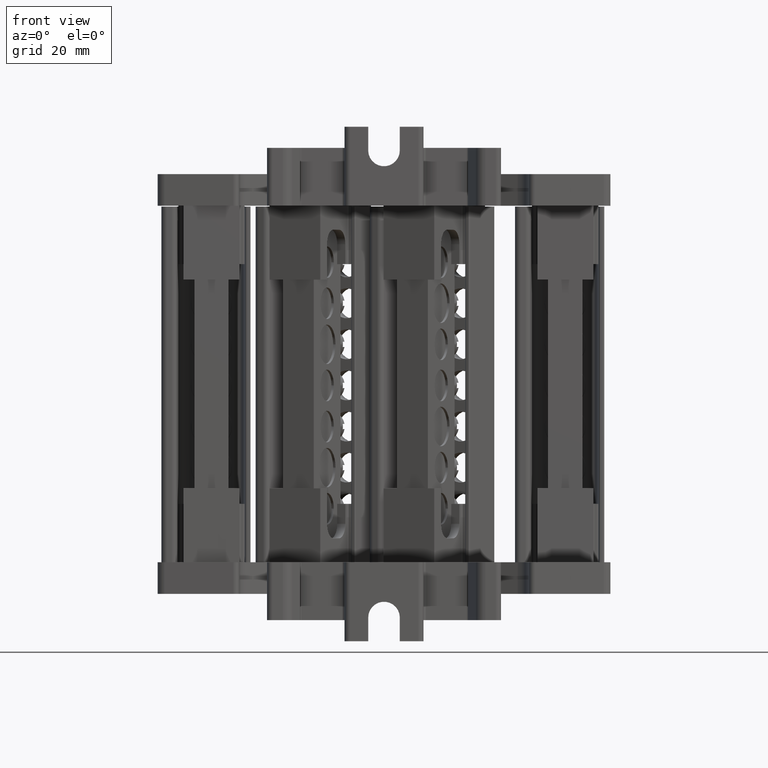
[diagram: clean part render]
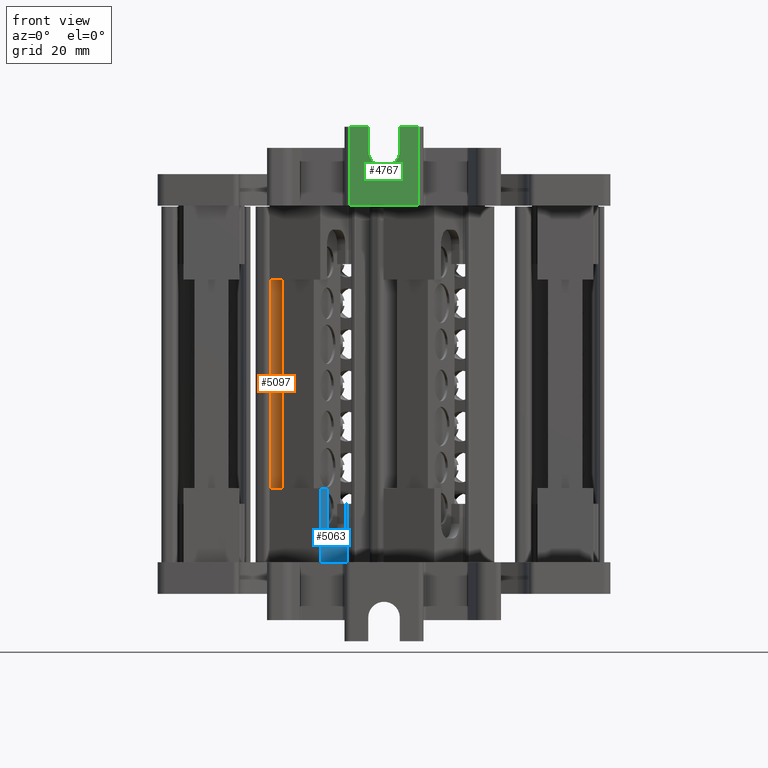
[diagram: same view with three faces highlighted in distinct colors, each labeled with its STEP entity id]
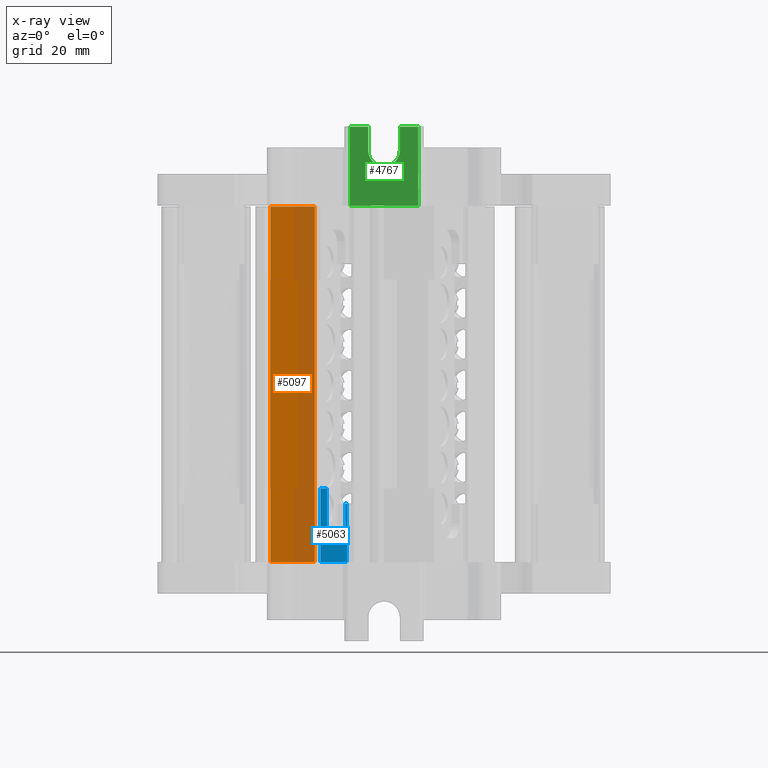
[diagram: x-ray of the same camera — body ghosted, the three highlighted faces saturated]
A machine part, front view with three faces highlighted in distinct colors.
The next image is the same camera in x-ray (body ghosted, the three faces saturated) — at least one of them is partly hidden behind the body in this view.
Their STEP definitions:

[orange] entity #5097 — the highlighted planar face has unit normal (0.8988, -0.4384, 0).
#5097 = ADVANCED_FACE ( 'NONE', ( #77092 ), #77133, .T. ) ;
#12807 = EDGE_LOOP ( 'NONE', ( #22890, #22954, #22866, #23008 ) ) ;
#16942 = EDGE_CURVE ( 'NONE', #78400, #90853, #35564, .T. ) ;
#17222 = EDGE_CURVE ( 'NONE', #78432, #78400, #34407, .T. ) ;
#17388 = EDGE_CURVE ( 'NONE', #90860, #78432, #34896, .T. ) ;
#18794 = EDGE_CURVE ( 'NONE', #90860, #90853, #50552, .T. ) ;
#19984 = VECTOR ( 'NONE', #33823, 1000.000000000000000 ) ;
#20215 = VECTOR ( 'NONE', #34415, 1000.000000000000100 ) ;
#22866 = ORIENTED_EDGE ( 'NONE', *, *, #17222, .T. ) ;
#22890 = ORIENTED_EDGE ( 'NONE', *, *, #18794, .F. ) ;
#22954 = ORIENTED_EDGE ( 'NONE', *, *, #17388, .T. ) ;
#23008 = ORIENTED_EDGE ( 'NONE', *, *, #16942, .T. ) ;
#33823 = DIRECTION ( 'NONE',  ( 1.978075936926512500E-014, -9.647720971054333400E-015, -1.000000000000000000 ) ) ;
#34407 = LINE ( 'NONE', #34456, #20215 ) ;
#34415 = DIRECTION ( 'NONE',  ( -0.4383711467921694300, -0.8987940462976588000, -0.0000000000000000000 ) ) ;
#34456 = CARTESIAN_POINT ( 'NONE',  ( 371.7010515559333600, -95.45530421474173000, 96.12882012113773600 ) ) ;
#34869 = DIRECTION ( 'NONE',  ( -1.978075936926512500E-014, 9.647720971054333400E-015, 1.000000000000000000 ) ) ;
#34896 = LINE ( 'NONE', #34916, #37170 ) ;
#34916 = CARTESIAN_POINT ( 'NONE',  ( 380.0419877127098400, -78.35385077028794900, 28.89408527322880700 ) ) ;
#35533 = CARTESIAN_POINT ( 'NONE',  ( 371.6042185082209200, -95.65384138445996600, 28.89408527322880700 ) ) ;
#35564 = LINE ( 'NONE', #35533, #19984 ) ;
#37170 = VECTOR ( 'NONE', #34869, 1000.000000000000000 ) ;
#47870 = VECTOR ( 'NONE', #50547, 1000.000000000000200 ) ;
#50547 = DIRECTION ( 'NONE',  ( -0.4383711467921738700, -0.8987940462976566900, 0.0000000000000000000 ) ) ;
#50552 = LINE ( 'NONE', #50561, #47870 ) ;
#50561 = CARTESIAN_POINT ( 'NONE',  ( 380.0419877127097800, -78.35385077028792000, 28.59460800001209400 ) ) ;
#69445 = CARTESIAN_POINT ( 'NONE',  ( 380.0419877127096700, -78.35385077028497800, 96.12882012113773600 ) ) ;
#69470 = CARTESIAN_POINT ( 'NONE',  ( 371.6042185082197300, -95.65384138445909900, 96.12882012113813300 ) ) ;
#73726 = CARTESIAN_POINT ( 'NONE',  ( 371.6042185082197900, -95.65384138446204100, 28.59460800001206200 ) ) ;
#73758 = CARTESIAN_POINT ( 'NONE',  ( 380.0419877127097800, -78.35385077028794900, 28.59460800001155400 ) ) ;
#75769 = AXIS2_PLACEMENT_3D ( 'NONE', #77135, #77117, #77113 ) ;
#77092 = FACE_OUTER_BOUND ( 'NONE', #12807, .T. ) ;
#77113 = DIRECTION ( 'NONE',  ( 0.4383711467921694300, 0.8987940462976588000, 0.0000000000000000000 ) ) ;
#77117 = DIRECTION ( 'NONE',  ( 0.8987940462976589100, -0.4383711467921694900, 2.200811125835408100E-014 ) ) ;
#77133 = PLANE ( 'NONE',  #75769 ) ;
#77135 = CARTESIAN_POINT ( 'NONE',  ( 371.7010515559346700, -95.45530421474238400, 28.89408527322880700 ) ) ;
#78400 = VERTEX_POINT ( 'NONE', #69470 ) ;
#78432 = VERTEX_POINT ( 'NONE', #69445 ) ;
#90853 = VERTEX_POINT ( 'NONE', #73726 ) ;
#90860 = VERTEX_POINT ( 'NONE', #73758 ) ;

[blue] entity #5063 — the highlighted planar face has unit normal (0.9063, -0.4226, 0).
#5063 = ADVANCED_FACE ( 'NONE', ( #74061 ), #74036, .T. ) ;
#12794 = EDGE_LOOP ( 'NONE', ( #22788, #22743, #22826, #22876, #22779, #22724, #22786, #22873, #22948, #22959 ) ) ;
#16634 = EDGE_CURVE ( 'NONE', #78370, #78358, #31398, .T. ) ;
#16828 = EDGE_CURVE ( 'NONE', #78384, #78370, #22273, .T. ) ;
#16849 = EDGE_CURVE ( 'NONE', #78421, #78405, #35401, .T. ) ;
#16872 = EDGE_CURVE ( 'NONE', #78405, #78398, #35416, .T. ) ;
#16882 = EDGE_CURVE ( 'NONE', #90705, #78401, #35507, .T. ) ;
#16893 = EDGE_CURVE ( 'NONE', #78402, #78401, #35497, .T. ) ;
#16896 = EDGE_CURVE ( 'NONE', #78402, #78384, #35513, .T. ) ;
#16921 = EDGE_CURVE ( 'NONE', #78358, #78421, #20020, .T. ) ;
#17432 = EDGE_CURVE ( 'NONE', #90664, #78398, #39632, .T. ) ;
#18827 = EDGE_CURVE ( 'NONE', #90705, #90664, #49645, .T. ) ;
#19947 = AXIS2_PLACEMENT_3D ( 'NONE', #35540, #35542, #35551 ) ;
#20020 = CIRCLE ( 'NONE', #19947, 2.771999999999999400 ) ;
#21955 = VECTOR ( 'NONE', #31400, 1000.000000000000000 ) ;
#22221 = VECTOR ( 'NONE', #35412, 1000.000000000000000 ) ;
#22228 = AXIS2_PLACEMENT_3D ( 'NONE', #35363, #35339, #35315 ) ;
#22249 = VECTOR ( 'NONE', #35465, 1000.000000000000000 ) ;
#22273 = CIRCLE ( 'NONE', #22228, 2.771999999999999400 ) ;
#22284 = VECTOR ( 'NONE', #35498, 999.9999999999998900 ) ;
#22301 = VECTOR ( 'NONE', #35487, 1000.000000000000000 ) ;
#22319 = VECTOR ( 'NONE', #35490, 1000.000000000000000 ) ;
#22724 = ORIENTED_EDGE ( 'NONE', *, *, #16872, .T. ) ;
#22743 = ORIENTED_EDGE ( 'NONE', *, *, #16828, .T. ) ;
#22779 = ORIENTED_EDGE ( 'NONE', *, *, #16849, .T. ) ;
#22786 = ORIENTED_EDGE ( 'NONE', *, *, #17432, .F. ) ;
#22788 = ORIENTED_EDGE ( 'NONE', *, *, #16896, .T. ) ;
#22826 = ORIENTED_EDGE ( 'NONE', *, *, #16634, .T. ) ;
#22873 = ORIENTED_EDGE ( 'NONE', *, *, #18827, .F. ) ;
#22876 = ORIENTED_EDGE ( 'NONE', *, *, #16921, .T. ) ;
#22948 = ORIENTED_EDGE ( 'NONE', *, *, #16882, .T. ) ;
#22959 = ORIENTED_EDGE ( 'NONE', *, *, #16893, .F. ) ;
#31381 = CARTESIAN_POINT ( 'NONE',  ( 379.8748220751221500, -105.9597847192865500, 33.14260800001299100 ) ) ;
#31398 = LINE ( 'NONE', #31381, #21955 ) ;
#31400 = DIRECTION ( 'NONE',  ( -0.4226182617405684900, -0.9063077870367110000, -0.0000000000000000000 ) ) ;
#35315 = DIRECTION ( 'NONE',  ( 0.4226182617405677100, 0.9063077870367114400, 0.0000000000000000000 ) ) ;
#35339 = DIRECTION ( 'NONE',  ( -0.9063077870367110000, 0.4226182617405684900, -2.222624844774840100E-014 ) ) ;
#35363 = CARTESIAN_POINT ( 'NONE',  ( 384.6803130409216500, -95.65437608667963300, 35.91460800001306100 ) ) ;
#35401 = LINE ( 'NONE', #35469, #22249 ) ;
#35409 = CARTESIAN_POINT ( 'NONE',  ( 379.8748220751219300, -105.9597847192864500, 42.61198635155238900 ) ) ;
#35412 = DIRECTION ( 'NONE',  ( -0.4226182617405684900, -0.9063077870367110000, -0.0000000000000000000 ) ) ;
#35416 = LINE ( 'NONE', #35409, #22221 ) ;
#35465 = DIRECTION ( 'NONE',  ( -2.014382204480699000E-014, 9.393218484001439600E-015, 1.000000000000000000 ) ) ;
#35469 = CARTESIAN_POINT ( 'NONE',  ( 382.3608617398418200, -100.6284554536276400, 112.2686880000142100 ) ) ;
#35487 = DIRECTION ( 'NONE',  ( 2.014382204480699000E-014, -9.393218484001439600E-015, -1.000000000000000000 ) ) ;
#35490 = DIRECTION ( 'NONE',  ( -2.014382204480699000E-014, 9.393218484001439600E-015, 1.000000000000000000 ) ) ;
#35491 = CARTESIAN_POINT ( 'NONE',  ( 386.1792914724288200, -92.43980646661233900, 112.2686880000142100 ) ) ;
#35497 = LINE ( 'NONE', #35531, #22284 ) ;
#35498 = DIRECTION ( 'NONE',  ( 0.4226182617403486700, 0.9063077870368135800, -8.954738664966160000E-014 ) ) ;
#35504 = CARTESIAN_POINT ( 'NONE',  ( 385.8518108624649600, -93.14209090101275000, 112.2686880000142100 ) ) ;
#35507 = LINE ( 'NONE', #35491, #22319 ) ;
#35513 = LINE ( 'NONE', #35504, #22301 ) ;
#35531 = CARTESIAN_POINT ( 'NONE',  ( 385.8518108624666100, -93.14209090101351800, 39.68260800001274200 ) ) ;
#35540 = CARTESIAN_POINT ( 'NONE',  ( 383.5323595613883200, -98.11617026796268700, 35.91460800001326700 ) ) ;
#35542 = DIRECTION ( 'NONE',  ( -0.9063077870367110000, 0.4226182617405684900, -2.222624844774840100E-014 ) ) ;
#35551 = DIRECTION ( 'NONE',  ( 0.4226182617405677100, 0.9063077870367114400, 1.001283391617204800E-014 ) ) ;
#37369 = VECTOR ( 'NONE', #39489, 1000.000000000000000 ) ;
#39489 = DIRECTION ( 'NONE',  ( 3.981437070420772900E-014, 8.538219351090629600E-014, 1.000000000000000000 ) ) ;
#39632 = LINE ( 'NONE', #39682, #37369 ) ;
#39682 = CARTESIAN_POINT ( 'NONE',  ( 381.0809765116765100, -103.3731781828921300, 28.59460800001298300 ) ) ;
#47933 = VECTOR ( 'NONE', #49600, 1000.000000000000200 ) ;
#49600 = DIRECTION ( 'NONE',  ( -0.4226182617405519500, -0.9063077870367186600, 0.0000000000000000000 ) ) ;
#49645 = LINE ( 'NONE', #49649, #47933 ) ;
#49649 = CARTESIAN_POINT ( 'NONE',  ( 386.1792914724304600, -92.43980646661312100, 28.59460800001209400 ) ) ;
#69396 = CARTESIAN_POINT ( 'NONE',  ( 383.5323595613883200, -98.11617026796278700, 33.14260800001313400 ) ) ;
#69414 = CARTESIAN_POINT ( 'NONE',  ( 385.8518108624665500, -93.14209090101370200, 35.91460800001306100 ) ) ;
#69415 = CARTESIAN_POINT ( 'NONE',  ( 384.6803130409215900, -95.65437608667970400, 33.14260800001300600 ) ) ;
#69439 = CARTESIAN_POINT ( 'NONE',  ( 382.3608617398434700, -100.6284554536284500, 35.91460800001335900 ) ) ;
#69447 = CARTESIAN_POINT ( 'NONE',  ( 385.8518108624664400, -93.14209090101346100, 39.68260800001271300 ) ) ;
#69461 = CARTESIAN_POINT ( 'NONE',  ( 386.1792914724303500, -92.43980646661279400, 39.68260800001268500 ) ) ;
#69463 = CARTESIAN_POINT ( 'NONE',  ( 381.0809765116769100, -103.3731781828908700, 42.61198635155248100 ) ) ;
#69464 = CARTESIAN_POINT ( 'NONE',  ( 382.3608617398433000, -100.6284554536282300, 42.61198635155238900 ) ) ;
#73572 = CARTESIAN_POINT ( 'NONE',  ( 386.1792914724303500, -92.43980646661334800, 28.59460800001210100 ) ) ;
#73591 = CARTESIAN_POINT ( 'NONE',  ( 381.0809765116765100, -103.3731781828921000, 28.59460800001209400 ) ) ;
#74018 = CARTESIAN_POINT ( 'NONE',  ( 379.8748220751205100, -105.9597847192857900, 112.2686880000142100 ) ) ;
#74026 = DIRECTION ( 'NONE',  ( 0.9063077870367110000, -0.4226182617405684900, 2.222624844774840400E-014 ) ) ;
#74036 = PLANE ( 'NONE',  #76852 ) ;
#74061 = FACE_OUTER_BOUND ( 'NONE', #12794, .T. ) ;
#74110 = DIRECTION ( 'NONE',  ( 0.4226182617405684900, 0.9063077870367110000, 0.0000000000000000000 ) ) ;
#76852 = AXIS2_PLACEMENT_3D ( 'NONE', #74018, #74026, #74110 ) ;
#78358 = VERTEX_POINT ( 'NONE', #69396 ) ;
#78370 = VERTEX_POINT ( 'NONE', #69415 ) ;
#78384 = VERTEX_POINT ( 'NONE', #69414 ) ;
#78398 = VERTEX_POINT ( 'NONE', #69463 ) ;
#78401 = VERTEX_POINT ( 'NONE', #69461 ) ;
#78402 = VERTEX_POINT ( 'NONE', #69447 ) ;
#78405 = VERTEX_POINT ( 'NONE', #69464 ) ;
#78421 = VERTEX_POINT ( 'NONE', #69439 ) ;
#90664 = VERTEX_POINT ( 'NONE', #73591 ) ;
#90705 = VERTEX_POINT ( 'NONE', #73572 ) ;

[green] entity #4767 — the highlighted planar face has unit normal (0, -1, 0).
#2491 = EDGE_CURVE ( 'NONE', #35356, #78589, #33768, .T. ) ;
#2500 = EDGE_CURVE ( 'NONE', #78551, #35356, #38591, .T. ) ;
#2513 = EDGE_CURVE ( 'NONE', #78552, #78604, #38836, .T. ) ;
#2519 = EDGE_CURVE ( 'NONE', #78604, #78551, #36786, .T. ) ;
#2550 = EDGE_CURVE ( 'NONE', #78641, #78552, #39119, .T. ) ;
#4767 = ADVANCED_FACE ( 'NONE', ( #72332 ), #72343, .T. ) ;
#13681 = EDGE_CURVE ( 'NONE', #78589, #80167, #99557, .T. ) ;
#13742 = EDGE_CURVE ( 'NONE', #80165, #80167, #99663, .T. ) ;
#13767 = EDGE_CURVE ( 'NONE', #80165, #78641, #99659, .T. ) ;
#16862 = ORIENTED_EDGE ( 'NONE', *, *, #2513, .T. ) ;
#16874 = ORIENTED_EDGE ( 'NONE', *, *, #2519, .T. ) ;
#16880 = ORIENTED_EDGE ( 'NONE', *, *, #13767, .T. ) ;
#16885 = ORIENTED_EDGE ( 'NONE', *, *, #2491, .T. ) ;
#16899 = ORIENTED_EDGE ( 'NONE', *, *, #2500, .T. ) ;
#16915 = ORIENTED_EDGE ( 'NONE', *, *, #13681, .T. ) ;
#16920 = ORIENTED_EDGE ( 'NONE', *, *, #13742, .F. ) ;
#16930 = ORIENTED_EDGE ( 'NONE', *, *, #2550, .T. ) ;
#32943 = DIRECTION ( 'NONE',  ( -1.000000000000000000, -0.0000000000000000000, -0.0000000000000000000 ) ) ;
#33768 = LINE ( 'NONE', #33771, #36764 ) ;
#33771 = CARTESIAN_POINT ( 'NONE',  ( 393.5326994787840800, -118.1104112344491700, 111.2946080000120000 ) ) ;
#35356 = VERTEX_POINT ( 'NONE', #63511 ) ;
#35787 = VECTOR ( 'NONE', #39133, 1000.000000000000000 ) ;
#36734 = VECTOR ( 'NONE', #38840, 1000.000000000000000 ) ;
#36746 = VECTOR ( 'NONE', #38607, 1000.000000000000000 ) ;
#36752 = AXIS2_PLACEMENT_3D ( 'NONE', #38808, #38752, #38811 ) ;
#36764 = VECTOR ( 'NONE', #32943, 1000.000000000000000 ) ;
#36786 = CIRCLE ( 'NONE', #36752, 2.999999999999980000 ) ;
#38591 = LINE ( 'NONE', #38603, #36746 ) ;
#38603 = CARTESIAN_POINT ( 'NONE',  ( 390.1887458622375100, -118.1104112344491700, 96.29460800001189100 ) ) ;
#38607 = DIRECTION ( 'NONE',  ( -0.0000000000000000000, 0.0000000000000000000, 1.000000000000000000 ) ) ;
#38721 = CARTESIAN_POINT ( 'NONE',  ( 396.1887458622374500, -118.1104112344491700, 96.29460800001189100 ) ) ;
#38752 = DIRECTION ( 'NONE',  ( 1.471495136388500300E-007, 0.9999999999999892300, 0.0000000000000000000 ) ) ;
#38808 = CARTESIAN_POINT ( 'NONE',  ( 393.1887458622373400, -118.1104107930006400, 106.7946080000120000 ) ) ;
#38811 = DIRECTION ( 'NONE',  ( -0.9999999999999890100, 1.471495147953315400E-007, 0.0000000000000000000 ) ) ;
#38836 = LINE ( 'NONE', #38721, #36734 ) ;
#38840 = DIRECTION ( 'NONE',  ( 0.0000000000000000000, -0.0000000000000000000, -1.000000000000000000 ) ) ;
#39119 = LINE ( 'NONE', #39123, #35787 ) ;
#39123 = CARTESIAN_POINT ( 'NONE',  ( 393.5326994787840800, -118.1104112344491700, 111.2946080000120000 ) ) ;
#39133 = DIRECTION ( 'NONE',  ( -1.000000000000000000, -0.0000000000000000000, -0.0000000000000000000 ) ) ;
#63511 = CARTESIAN_POINT ( 'NONE',  ( 390.1887458622375100, -118.1104112344491700, 111.2946080000120000 ) ) ;
#64503 = AXIS2_PLACEMENT_3D ( 'NONE', #72372, #72374, #72367 ) ;
#69561 = CARTESIAN_POINT ( 'NONE',  ( 390.1887458622375100, -118.1104107930006400, 106.7946080000120000 ) ) ;
#69615 = CARTESIAN_POINT ( 'NONE',  ( 396.1887460584368300, -118.1104112344491700, 111.2946080000120000 ) ) ;
#69648 = CARTESIAN_POINT ( 'NONE',  ( 386.6925503607020600, -118.1104112344491700, 111.2946080000120000 ) ) ;
#69654 = CARTESIAN_POINT ( 'NONE',  ( 396.1887458622374000, -118.1104112344491700, 106.7946080000120000 ) ) ;
#69676 = CARTESIAN_POINT ( 'NONE',  ( 399.6849425409685600, -118.1104112344491700, 111.2946080000120000 ) ) ;
#71455 = CARTESIAN_POINT ( 'NONE',  ( 399.6849425409685600, -118.1104112344491700, 96.29460800001189100 ) ) ;
#71534 = CARTESIAN_POINT ( 'NONE',  ( 386.6925503607020600, -118.1104112344491700, 96.29460800001189100 ) ) ;
#72332 = FACE_OUTER_BOUND ( 'NONE', #86452, .T. ) ;
#72343 = PLANE ( 'NONE',  #64503 ) ;
#72367 = DIRECTION ( 'NONE',  ( 0.0000000000000000000, -0.0000000000000000000, -1.000000000000000000 ) ) ;
#72372 = CARTESIAN_POINT ( 'NONE',  ( 393.5326994787840800, -118.1104112344491700, 96.29460800001189100 ) ) ;
#72374 = DIRECTION ( 'NONE',  ( 0.0000000000000000000, -1.000000000000000000, 0.0000000000000000000 ) ) ;
#78551 = VERTEX_POINT ( 'NONE', #69561 ) ;
#78552 = VERTEX_POINT ( 'NONE', #69615 ) ;
#78589 = VERTEX_POINT ( 'NONE', #69648 ) ;
#78604 = VERTEX_POINT ( 'NONE', #69654 ) ;
#78641 = VERTEX_POINT ( 'NONE', #69676 ) ;
#80165 = VERTEX_POINT ( 'NONE', #71455 ) ;
#80167 = VERTEX_POINT ( 'NONE', #71534 ) ;
#86452 = EDGE_LOOP ( 'NONE', ( #16880, #16930, #16862, #16874, #16899, #16885, #16915, #16920 ) ) ;
#95907 = VECTOR ( 'NONE', #99574, 1000.000000000000000 ) ;
#95948 = VECTOR ( 'NONE', #99658, 1000.000000000000000 ) ;
#95982 = VECTOR ( 'NONE', #99686, 1000.000000000000000 ) ;
#99557 = LINE ( 'NONE', #99567, #95907 ) ;
#99567 = CARTESIAN_POINT ( 'NONE',  ( 386.6925503607020600, -118.1104112344491700, 96.29460800001189100 ) ) ;
#99574 = DIRECTION ( 'NONE',  ( 0.0000000000000000000, -0.0000000000000000000, -1.000000000000000000 ) ) ;
#99644 = CARTESIAN_POINT ( 'NONE',  ( 393.5326994787840800, -118.1104112344491700, 96.29460800001189100 ) ) ;
#99658 = DIRECTION ( 'NONE',  ( -1.000000000000000000, 0.0000000000000000000, -0.0000000000000000000 ) ) ;
#99659 = LINE ( 'NONE', #99685, #95982 ) ;
#99663 = LINE ( 'NONE', #99644, #95948 ) ;
#99685 = CARTESIAN_POINT ( 'NONE',  ( 399.6849425409685600, -118.1104112344491700, 96.29460800001189100 ) ) ;
#99686 = DIRECTION ( 'NONE',  ( -0.0000000000000000000, 0.0000000000000000000, 1.000000000000000000 ) ) ;